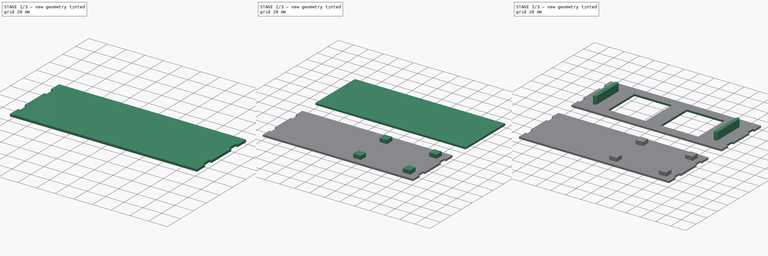
[diagram: build sequence overview — one tinted view per stage of 3, left to right]
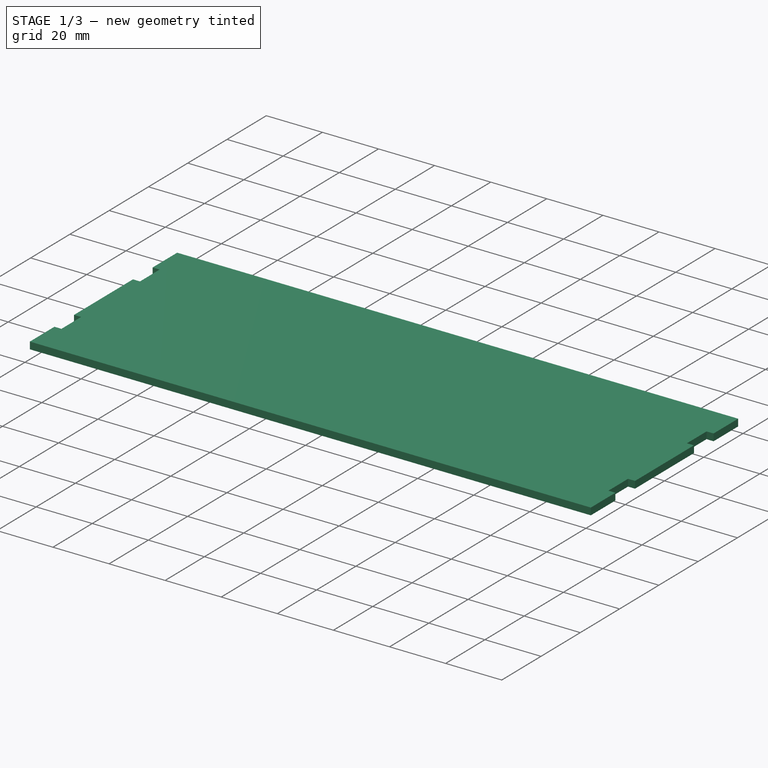
[diagram: stage 1 of 3 — iso view after this stage's code; geometry added in this stage tinted green]
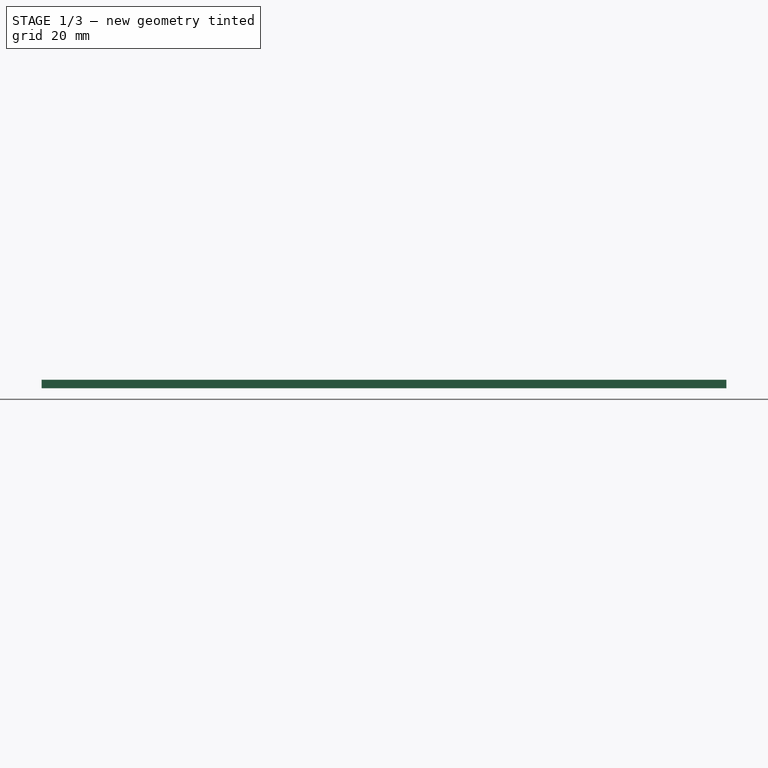
[diagram: stage 1 of 3 — front view after this stage's code; geometry added in this stage tinted green]
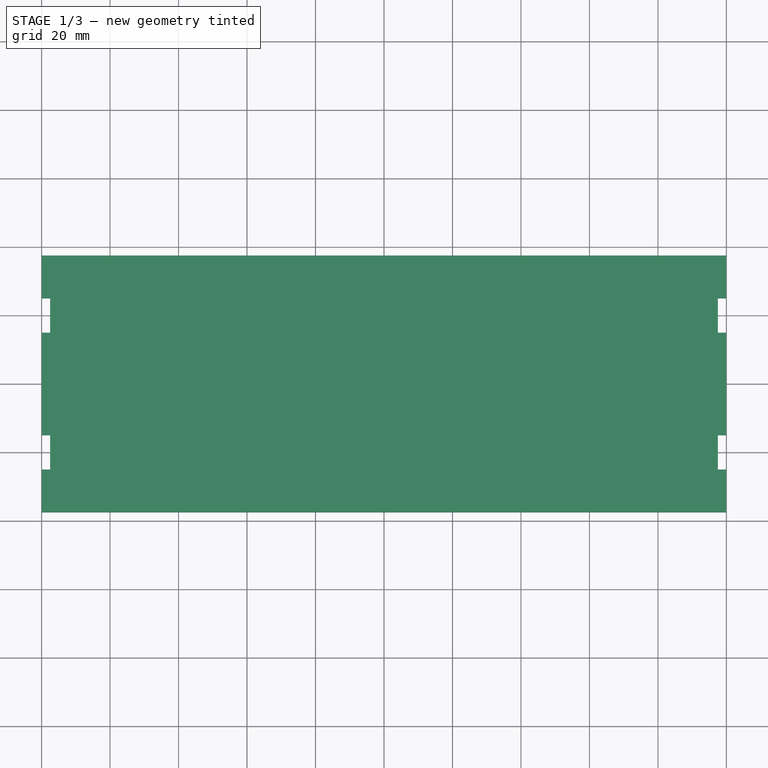
[diagram: stage 1 of 3 — top view after this stage's code; geometry added in this stage tinted green]
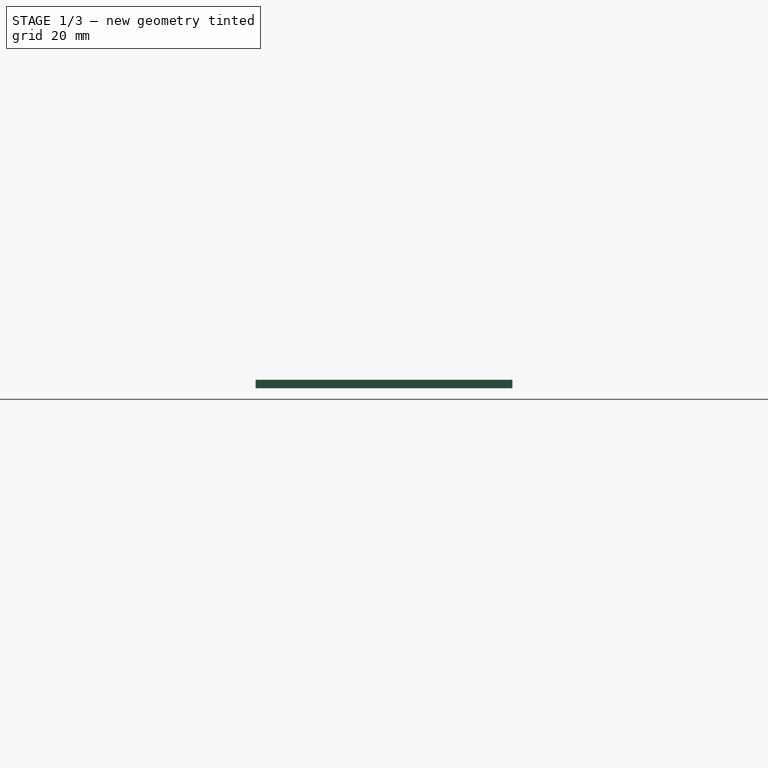
[diagram: stage 1 of 3 — right view after this stage's code; geometry added in this stage tinted green]
FCSTD DOCUMENT  (FreeCAD 1.1R20260325 (Git shallow))
Label: RackLCDFrame
License: All rights reserved
LicenseURL: https://en.wikipedia.org/wiki/All_rights_reserved
objects: Sketcher::SketchObject×6, PartDesign::Pad×4, App::Point×2, PartDesign::Pocket×2, PartDesign::Body×2
note: 32 computed .brp shape members not serialized (recipe doc carries the construction recipe); baked Part::Feature solids carry a one-line shape summary decoded from their .brp

FEATURE [PartDesign::Body] Body  label="Base-Inverted"
  AllowCompound = true
  Group = -> [Sketch,Pad,Sketch001,Pad001,Sketch002,Pocket]
  Origin = -> Origin
  Tip = -> Pocket
FEATURE [App::Point] Origin003
  Role = Origin
FEATURE [Sketcher::SketchObject] Sketch003  label="UBase"
  ArcFitTolerance = 1e-06
  AttachmentSupport = -> [Origin002]
  ExternalTypes = [0]
  FullyConstrained = true
  MakeInternals = false
  MapMode = 5
  _ExternalGeoVersion = 1
  sketch-geometry (5):
    g0: LineSegment StartX=-100 StartY=-62.5 StartZ=0 EndX=-100 EndY=-137.5 EndZ=0
    g1: LineSegment StartX=-100 StartY=-137.5 StartZ=0 EndX=100 EndY=-137.5 EndZ=0
    g2: LineSegment StartX=100 StartY=-137.5 StartZ=0 EndX=100 EndY=-62.5 EndZ=0
    g3: LineSegment StartX=100 StartY=-62.5 StartZ=0 EndX=-100 EndY=-62.5 EndZ=0
    g4: GeomPoint [constr] X=0 Y=-100 Z=0
  constraints (13):
    c: Coincident(g0,g1)
    c: Coincident(g1,g2)
    c: Coincident(g2,g3)
    c: Coincident(g3,g0)
    c: Vertical(g0)
    c: Vertical(g2)
    c: Horizontal(g1)
    c: Horizontal(g3)
    c: Symmetric(g2,g0,g4)
    c: PointOnObject(g4,g-2)
    c: DistanceX(g3,g3) = 200
    c: DistanceY(g2,g2) = 75
    c: Distance(g4,g-1) = 100
FEATURE [PartDesign::Pad] Pad002  label="UBasePad"
  Direction = (0,0,1)
  Length = 2.5
  Length2 = 10
  Profile = -> Sketch003
  ReferenceAxis = -> Sketch003 [N_Axis]
  Refine = true
  SideType = 0
  Suppressed = false
  Type = 0
  Type2 = 0
FEATURE [Sketcher::SketchObject] Sketch004  label="UHole"
  ArcFitTolerance = 1e-06
  AttachmentSupport = -> [Pad002]
  ExternalGeometry = -> [Pad002]
  ExternalTypes = [0,0,0,0]
  FullyConstrained = true
  MakeInternals = false
  MapMode = 5
  Placement = pos=(0,0,2.5) rot=(0,0,1;0rad)
  _ExternalGeoVersion = 1
  sketch-geometry (20):
    g0: LineSegment [constr] StartX=-100 StartY=-125 StartZ=0 EndX=100 EndY=-125 EndZ=0
    g1: LineSegment [constr] StartX=-100 StartY=-75 StartZ=0 EndX=100 EndY=-75 EndZ=0
    g2: LineSegment StartX=-100 StartY=-75 StartZ=0 EndX=-100 EndY=-85 EndZ=0
    g3: LineSegment StartX=-100 StartY=-85 StartZ=0 EndX=-97.5 EndY=-85 EndZ=0
    g4: LineSegment StartX=-97.5 StartY=-85 StartZ=0 EndX=-97.5 EndY=-75 EndZ=0
    g5: LineSegment StartX=-97.5 StartY=-75 StartZ=0 EndX=-100 EndY=-75 EndZ=0
    g6: LineSegment StartX=-100 StartY=-125 StartZ=0 EndX=-97.5 EndY=-125 EndZ=0
    g7: LineSegment StartX=-97.5 StartY=-125 StartZ=0 EndX=-97.5 EndY=-115 EndZ=0
    g8: LineSegment StartX=-97.5 StartY=-115 StartZ=0 EndX=-100 EndY=-115 EndZ=0
    g9: LineSegment StartX=-100 StartY=-115 StartZ=0 EndX=-100 EndY=-125 EndZ=0
    g10: LineSegment StartX=100 StartY=-125 StartZ=0 EndX=100 EndY=-115 EndZ=0
    g11: LineSegment StartX=100 StartY=-115 StartZ=0 EndX=97.5 EndY=-115 EndZ=0
    g12: LineSegment StartX=97.5 StartY=-115 StartZ=0 EndX=97.5 EndY=-125 EndZ=0
    g13: LineSegment StartX=97.5 StartY=-125 StartZ=0 EndX=100 EndY=-125 EndZ=0
    g14: LineSegment StartX=100 StartY=-75 StartZ=0 EndX=97.5 EndY=-75 EndZ=0
    g15: LineSegment StartX=97.5 StartY=-75 StartZ=0 EndX=97.5 EndY=-85 EndZ=0
    g16: LineSegment StartX=97.5 StartY=-85 StartZ=0 EndX=100 EndY=-85 EndZ=0
    g17: LineSegment StartX=100 StartY=-85 StartZ=0 EndX=100 EndY=-75 EndZ=0
    g18: LineSegment [constr] StartX=-97.5 StartY=-62.5 StartZ=0 EndX=-97.5 EndY=-137.5 EndZ=0
    g19: LineSegment [constr] StartX=97.5 StartY=-62.5 StartZ=0 EndX=97.5 EndY=-137.5 EndZ=0
  constraints (60):
    c: PointOnObject(g0,g-3)
    c: PointOnObject(g0,g-5)
    c: Horizontal(g0)
    c: PointOnObject(g1,g-3)
    c: PointOnObject(g1,g-5)
    c: Horizontal(g1)
    c: Distance(g1,g-4) = 12.5
    c: Distance(g-6,g0) = 12.5
    c: Coincident(g2,g3)
    c: Coincident(g3,g4)
    c: Coincident(g4,g5)
    c: Coincident(g5,g2)
    c: Vertical(g2)
    c: Vertical(g4)
    c: Horizontal(g3)
    c: Horizontal(g5)
    c: Coincident(g2,g1)
    c: Coincident(g6,g7)
    c: Coincident(g7,g8)
    c: Coincident(g8,g9)
    c: Coincident(g9,g6)
    c: Horizontal(g6)
    c: Horizontal(g8)
    c: Vertical(g7)
    c: Vertical(g9)
    c: Coincident(g6,g0)
    c: Coincident(g10,g11)
    c: Coincident(g11,g12)
    c: Coincident(g12,g13)
    c: Coincident(g13,g10)
    c: Vertical(g10)
    c: Vertical(g12)
    c: Horizontal(g11)
    c: Horizontal(g13)
    c: Coincident(g10,g0)
    c: Coincident(g14,g15)
    c: Coincident(g15,g16)
    c: Coincident(g16,g17)
    c: Coincident(g17,g14)
    c: Horizontal(g14)
    c: Horizontal(g16)
    c: Vertical(g15)
    c: Vertical(g17)
    c: Coincident(g14,g1)
    c: PointOnObject(g18,g-4)
    c: PointOnObject(g18,g-6)
    c: Vertical(g18)
    c: PointOnObject(g19,g-4)
    c: PointOnObject(g19,g-6)
    c: Vertical(g19)
    c: PointOnObject(g3,g18)
    c: PointOnObject(g7,g18)
    c: PointOnObject(g11,g19)
    c: PointOnObject(g15,g19)
    c: Distance(g17,g17) = 10
    c: Distance(g10,g10) = 10
    c: Distance(g9,g9) = 10
    c: Distance(g2,g2) = 10
    c: Distance(g18,g-3) = 2.5
    c: Distance(g19,g-5) = 2.5
FEATURE [PartDesign::Pocket] Pocket001  label="UHolePocket"
  BaseFeature = -> Pad002
  Direction = (0,0,-1)
  Length = 5
  Length2 = 5
  Profile = -> Sketch004
  ReferenceAxis = -> Sketch004 [N_Axis]
  Refine = true
  SideType = 0
  Suppressed = false
  Type = 2
  Type2 = 0
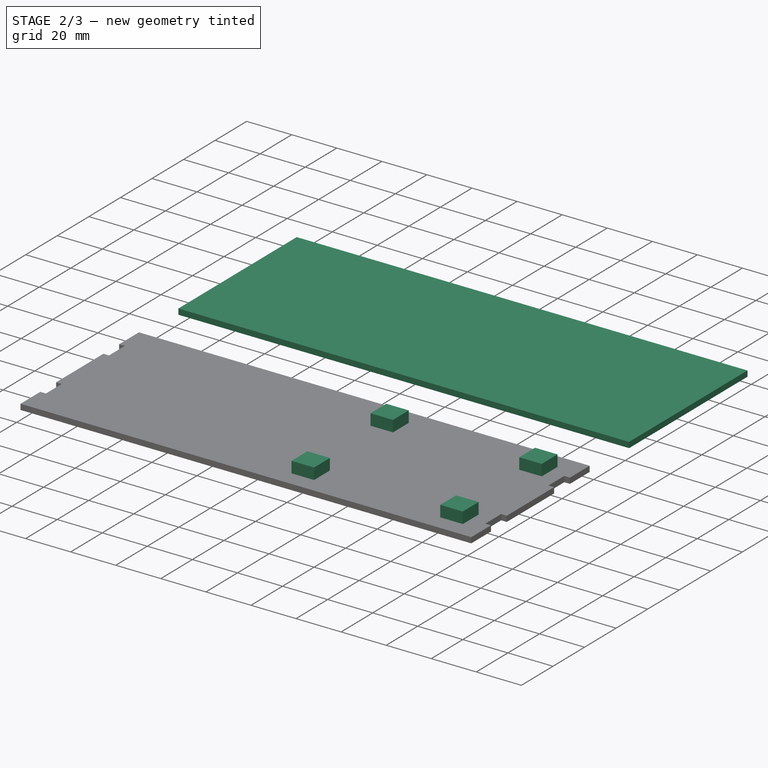
[diagram: stage 2 of 3 — iso view after this stage's code; geometry added in this stage tinted green]
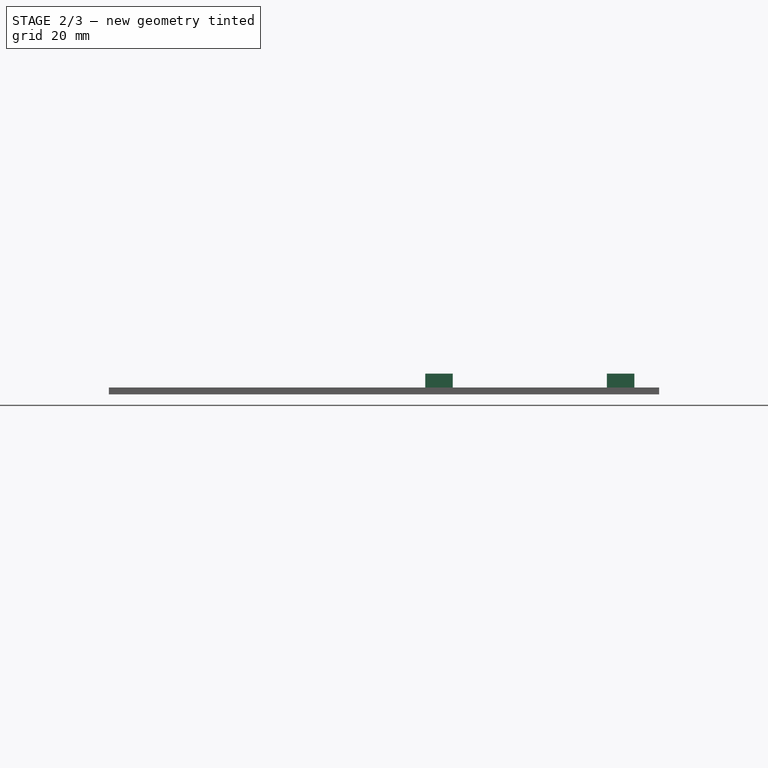
[diagram: stage 2 of 3 — front view after this stage's code; geometry added in this stage tinted green]
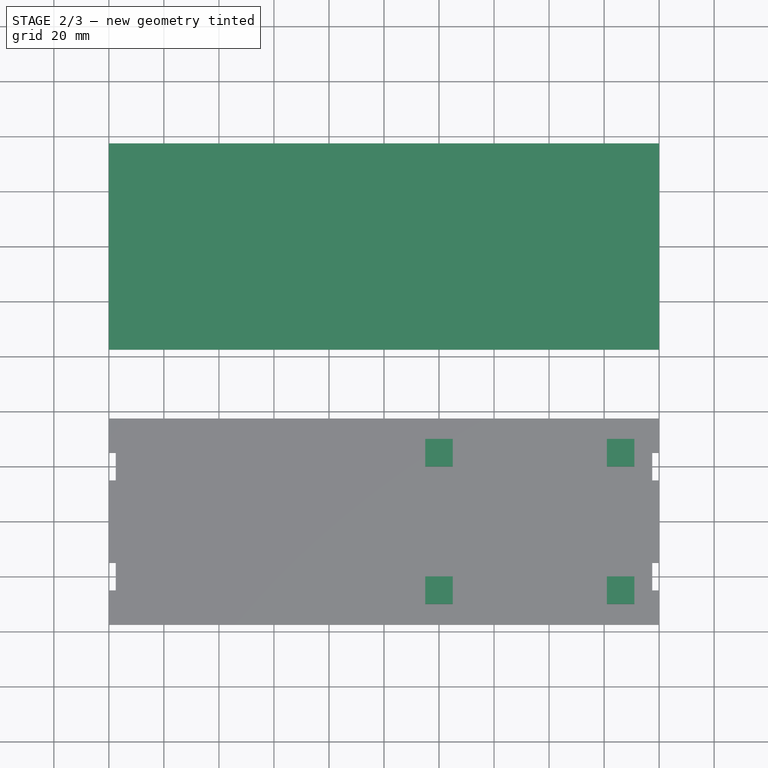
[diagram: stage 2 of 3 — top view after this stage's code; geometry added in this stage tinted green]
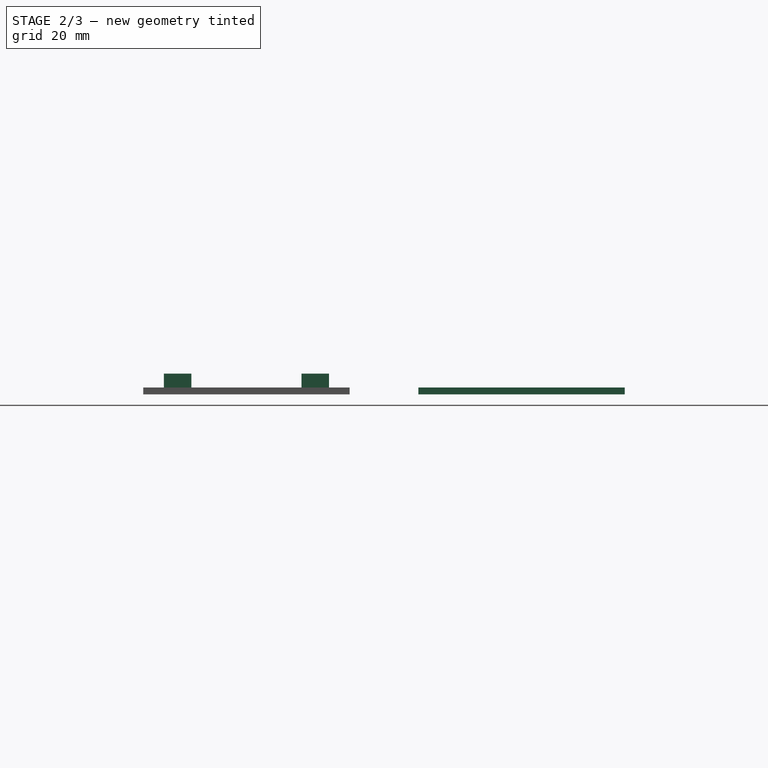
[diagram: stage 2 of 3 — right view after this stage's code; geometry added in this stage tinted green]
FEATURE [App::Point] Origin001
  Role = Origin
FEATURE [Sketcher::SketchObject] Sketch  label="Base"
  ArcFitTolerance = 1e-06
  AttachmentSupport = -> [Origin]
  ExternalTypes = [0]
  FullyConstrained = true
  MakeInternals = false
  MapMode = 5
  _ExternalGeoVersion = 1
  sketch-geometry (5):
    g0: LineSegment StartX=-100 StartY=37.5 StartZ=0 EndX=-100 EndY=-37.5 EndZ=0
    g1: LineSegment StartX=-100 StartY=-37.5 StartZ=0 EndX=100 EndY=-37.5 EndZ=0
    g2: LineSegment StartX=100 StartY=-37.5 StartZ=0 EndX=100 EndY=37.5 EndZ=0
    g3: LineSegment StartX=100 StartY=37.5 StartZ=0 EndX=-100 EndY=37.5 EndZ=0
    g4: GeomPoint [constr] X=0 Y=-1e-16 Z=0
  constraints (12):
    c: Coincident(g0,g1)
    c: Coincident(g1,g2)
    c: Coincident(g2,g3)
    c: Coincident(g3,g0)
    c: Vertical(g0)
    c: Vertical(g2)
    c: Horizontal(g1)
    c: Horizontal(g3)
    c: Symmetric(g2,g0,g4)
    c: Coincident(g4,g-1)
    c: DistanceX(g3,g3) = 200
    c: Distance(g2,g2) = 75
FEATURE [PartDesign::Pad] Pad  label="BasePad"
  Direction = (0,0,1)
  Length = 2.5
  Length2 = 10
  Profile = -> Sketch
  ReferenceAxis = -> Sketch [N_Axis]
  Refine = true
  SideType = 0
  Suppressed = false
  Type = 0
  Type2 = 0
FEATURE [Sketcher::SketchObject] Sketch005  label="UPostsL"
  ArcFitTolerance = 1e-06
  AttachmentSupport = -> [Pocket001]
  ExternalGeometry = -> [Pocket001]
  ExternalTypes = [0,0,0,0,0,0,0,0]
  FullyConstrained = true
  MakeInternals = false
  MapMode = 5
  Placement = pos=(0,0,2.5) rot=(0,0,1;0rad)
  _ExternalGeoVersion = 1
  sketch-geometry (30):
    g0: LineSegment [constr] StartX=20 StartY=-75 StartZ=0 EndX=20 EndY=-125 EndZ=0
    g1: LineSegment [constr] StartX=20 StartY=-125 StartZ=0 EndX=86 EndY=-125 EndZ=0
    g2: LineSegment [constr] StartX=86 StartY=-125 StartZ=0 EndX=86 EndY=-75 EndZ=0
    g3: LineSegment [constr] StartX=86 StartY=-75 StartZ=0 EndX=20 EndY=-75 EndZ=0
    g4: LineSegment [constr] StartX=-100 StartY=-75 StartZ=0 EndX=100 EndY=-75 EndZ=0
    g5: LineSegment [constr] StartX=-100 StartY=-125 StartZ=0 EndX=100 EndY=-125 EndZ=0
    g6: LineSegment StartX=15 StartY=-70 StartZ=0 EndX=15 EndY=-80 EndZ=0
    g7: LineSegment StartX=15 StartY=-80 StartZ=0 EndX=25 EndY=-80 EndZ=0
    g8: LineSegment StartX=25 StartY=-80 StartZ=0 EndX=25 EndY=-70 EndZ=0
    g9: LineSegment StartX=25 StartY=-70 StartZ=0 EndX=15 EndY=-70 EndZ=0
    g10: GeomPoint [constr] X=20 Y=-75 Z=0
    g11: LineSegment StartX=25 StartY=-120 StartZ=0 EndX=15 EndY=-120 EndZ=0
    g12: LineSegment StartX=15 StartY=-120 StartZ=0 EndX=15 EndY=-130 EndZ=0
    g13: LineSegment StartX=15 StartY=-130 StartZ=0 EndX=25 EndY=-130 EndZ=0
    g14: LineSegment StartX=25 StartY=-130 StartZ=0 EndX=25 EndY=-120 EndZ=0
    g15: GeomPoint [constr] X=20 Y=-125 Z=0
    g16: LineSegment StartX=81 StartY=-70 StartZ=0 EndX=81 EndY=-80 EndZ=0
    g17: LineSegment StartX=81 StartY=-80 StartZ=0 EndX=91 EndY=-80 EndZ=0
    g18: LineSegment StartX=91 StartY=-80 StartZ=0 EndX=91 EndY=-70 EndZ=0
    g19: LineSegment StartX=91 StartY=-70 StartZ=0 EndX=81 EndY=-70 EndZ=0
    g20: GeomPoint [constr] X=86 Y=-75 Z=0
    g21: LineSegment StartX=81 StartY=-120 StartZ=0 EndX=81 EndY=-130 EndZ=0
    g22: LineSegment StartX=81 StartY=-130 StartZ=0 EndX=91 EndY=-130 EndZ=0
    g23: LineSegment StartX=91 StartY=-130 StartZ=0 EndX=91 EndY=-120 EndZ=0
    g24: LineSegment StartX=91 StartY=-120 StartZ=0 EndX=81 EndY=-120 EndZ=0
    g25: GeomPoint [constr] X=86 Y=-125 Z=0
    g26: LineSegment [constr] StartX=25 StartY=-80 StartZ=0 EndX=81 EndY=-80 EndZ=0
    g27: LineSegment [constr] StartX=81 StartY=-80 StartZ=0 EndX=81 EndY=-120 EndZ=0
    g28: LineSegment [constr] StartX=81 StartY=-120 StartZ=0 EndX=25 EndY=-120 EndZ=0
    g29: LineSegment [constr] StartX=25 StartY=-120 StartZ=0 EndX=25 EndY=-80 EndZ=0
  constraints (72):
    c: Coincident(g0,g1)
    c: Coincident(g1,g2)
    c: Coincident(g2,g3)
    c: Coincident(g3,g0)
    c: Vertical(g0)
    c: Vertical(g2)
    c: Horizontal(g1)
    c: Horizontal(g3)
    c: DistanceX(g3,g3) = 66
    c: Coincident(g4,g-8)
    c: Coincident(g4,g-4)
    c: Coincident(g5,g-10)
    c: Coincident(g5,g-6)
    c: PointOnObject(g0,g4)
    c: PointOnObject(g0,g5)
    c: Distance(g0,g-2) = 20
    c: Coincident(g6,g7)
    c: Coincident(g7,g8)
    c: Coincident(g8,g9)
    c: Coincident(g9,g6)
    c: Vertical(g6)
    c: Vertical(g8)
    c: Horizontal(g7)
    c: Horizontal(g9)
    c: Symmetric(g8,g6,g10)
    c: Coincident(g10,g0)
    c: Coincident(g11,g12)
    c: Coincident(g12,g13)
    c: Coincident(g13,g14)
    c: Coincident(g14,g11)
    c: Horizontal(g11)
    c: Horizontal(g13)
    c: Vertical(g12)
    c: Vertical(g14)
    c: Symmetric(g13,g11,g15)
    c: Coincident(g15,g0)
    c: Coincident(g16,g17)
    c: Coincident(g17,g18)
    c: Coincident(g18,g19)
    c: Coincident(g19,g16)
    c: Vertical(g16)
    c: Vertical(g18)
    c: Horizontal(g17)
    c: Horizontal(g19)
    c: Symmetric(g18,g16,g20)
    c: Coincident(g20,g2)
    c: Coincident(g21,g22)
    c: Coincident(g22,g23)
    c: Coincident(g23,g24)
    c: Coincident(g24,g21)
    c: Vertical(g21)
    c: Vertical(g23)
    c: Horizontal(g22)
    c: Horizontal(g24)
    c: Symmetric(g23,g21,g25)
    c: Coincident(g25,g1)
    c: Coincident(g7,g26)
    c: Coincident(g26,g16)
    c: Horizontal(g26)
    c: Coincident(g26,g27)
    c: Coincident(g27,g21)
    c: Vertical(g27)
    c: Coincident(g27,g28)
    c: Coincident(g28,g11)
    c: Horizontal(g28)
    c: Coincident(g28,g29)
    c: Coincident(g29,g26)
    c: Vertical(g29)
    c: Distance(g2,g27) = 5
    c: Distance(g3,g26) = 5
    c: Distance(g1,g28) = 5
    c: Distance(g29,g0) = 5
FEATURE [PartDesign::Pad] Pad003  label="UPostsLPad"
  BaseFeature = -> Pocket001
  Direction = (0,0,1)
  Length = 5
  Length2 = 10
  Profile = -> Sketch005
  ReferenceAxis = -> Sketch005 [N_Axis]
  Refine = true
  SideType = 0
  Suppressed = false
  Type = 0
  Type2 = 0
FEATURE [PartDesign::Body] Body001  label="Upper"
  AllowCompound = true
  Group = -> [Sketch003,Pad002,Sketch004,Pocket001,Sketch005,Pad003]
  Origin = -> Origin002
  Tip = -> Pad003
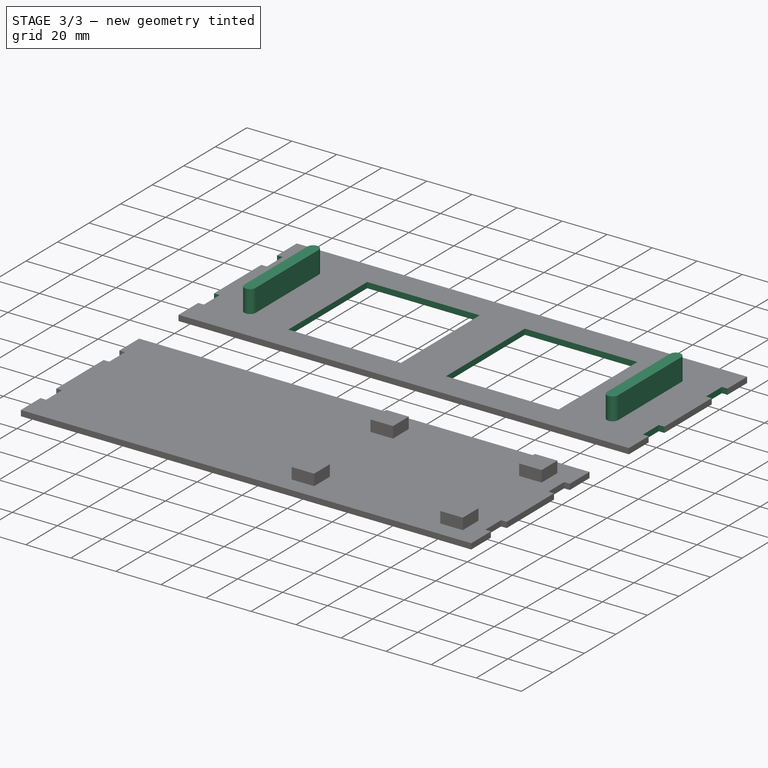
[diagram: stage 3 of 3 — iso view after this stage's code; geometry added in this stage tinted green]
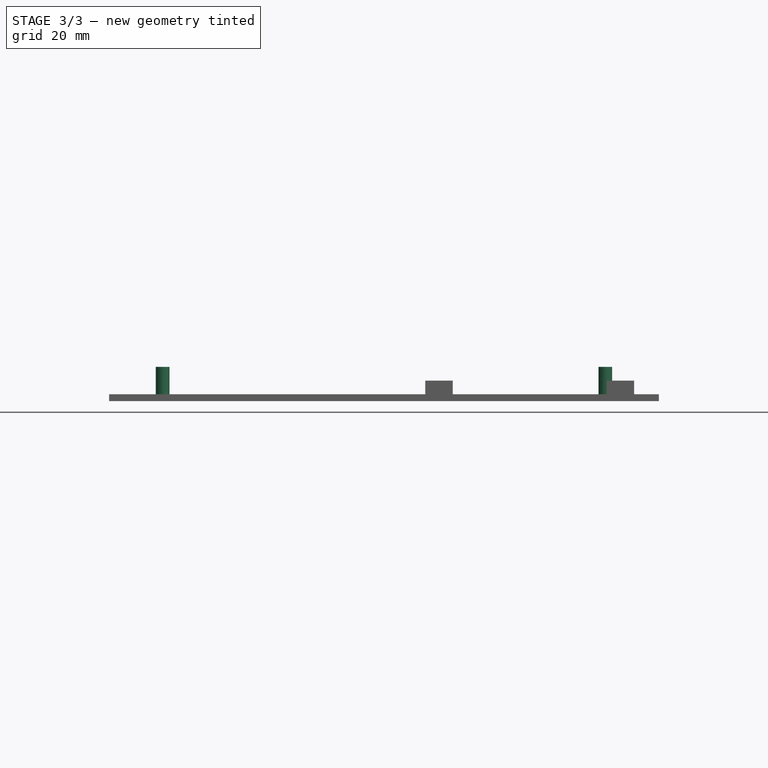
[diagram: stage 3 of 3 — front view after this stage's code; geometry added in this stage tinted green]
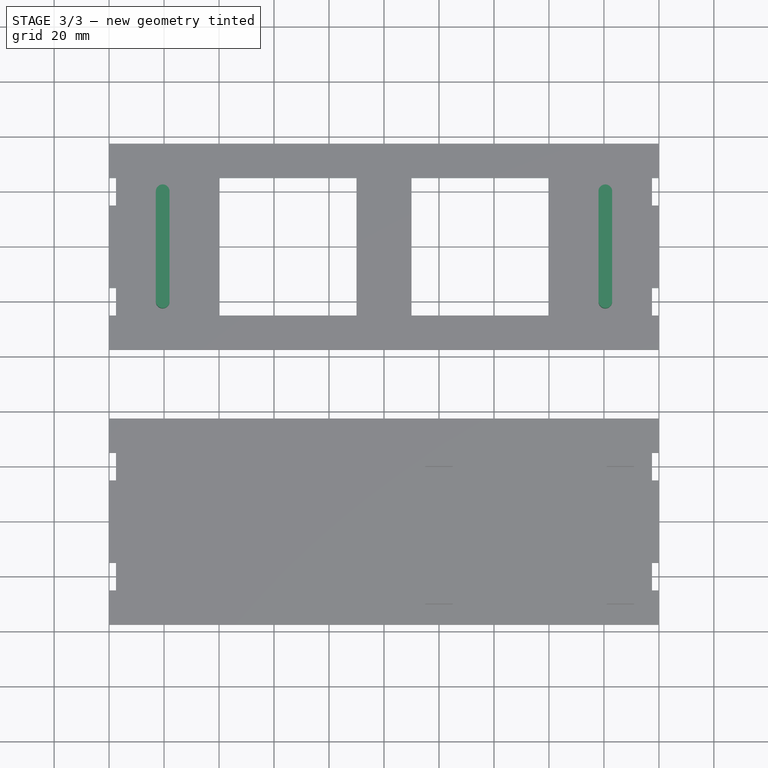
[diagram: stage 3 of 3 — top view after this stage's code; geometry added in this stage tinted green]
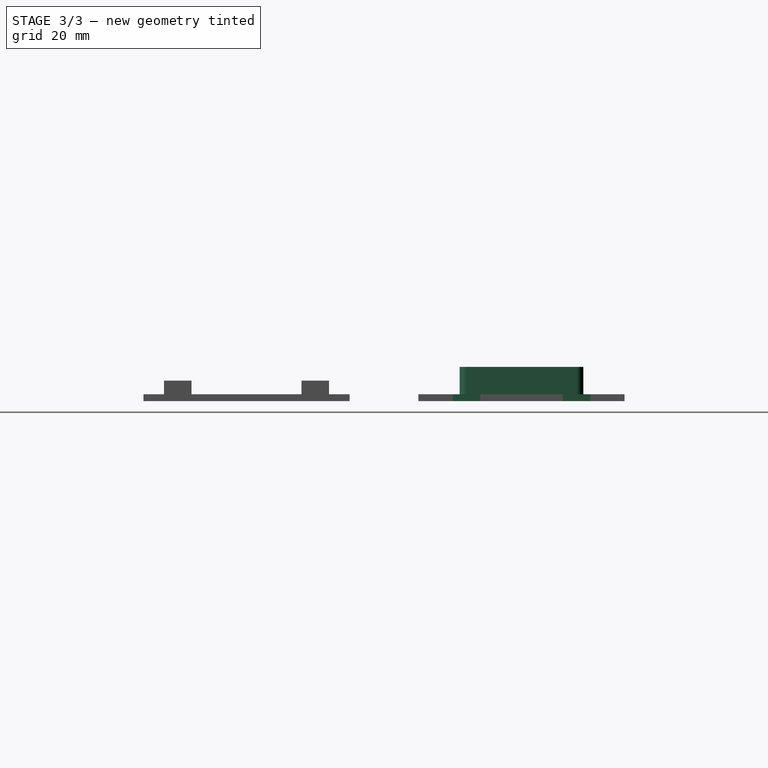
[diagram: stage 3 of 3 — right view after this stage's code; geometry added in this stage tinted green]
FEATURE [Sketcher::SketchObject] Sketch001  label="LocatingPins"
  ArcFitTolerance = 1e-06
  AttachmentSupport = -> [Pad]
  ExternalGeometry = -> [Pad]
  ExternalTypes = [0,0,0,0]
  FullyConstrained = true
  MakeInternals = false
  MapMode = 5
  Placement = pos=(0,0,2.5) rot=(0,0,1;0rad)
  _ExternalGeoVersion = 1
  sketch-geometry (10):
    g0: LineSegment [constr] StartX=-100 StartY=20 StartZ=0 EndX=100 EndY=20 EndZ=0
    g1: LineSegment [constr] StartX=-100 StartY=-20 StartZ=0 EndX=100 EndY=-20 EndZ=0
    g2: ArcOfCircle CenterX=-80.5 CenterY=20 CenterZ=0 NormalX=0 NormalY=0 NormalZ=1 AngleXU=0 Radius=2.5 StartAngle=0 EndAngle=3.14159
    g3: ArcOfCircle CenterX=-80.5 CenterY=-20 CenterZ=0 NormalX=0 NormalY=0 NormalZ=1 AngleXU=0 Radius=2.5 StartAngle=3.14159 EndAngle=6.28319
    g4: LineSegment StartX=-78 StartY=20 StartZ=0 EndX=-78 EndY=-20 EndZ=0
    g5: LineSegment StartX=-83 StartY=20 StartZ=0 EndX=-83 EndY=-20 EndZ=0
    g6: ArcOfCircle CenterX=80.5 CenterY=20 CenterZ=0 NormalX=0 NormalY=0 NormalZ=1 AngleXU=0 Radius=2.5 StartAngle=-9e-16 EndAngle=3.14159
    g7: ArcOfCircle CenterX=80.5 CenterY=-20 CenterZ=0 NormalX=0 NormalY=0 NormalZ=1 AngleXU=0 Radius=2.5 StartAngle=3.14159 EndAngle=6.28319
    g8: LineSegment StartX=83 StartY=20 StartZ=0 EndX=83 EndY=-20 EndZ=0
    g9: LineSegment StartX=78 StartY=20 StartZ=0 EndX=78 EndY=-20 EndZ=0
  constraints (28):
    c: PointOnObject(g0,g-4)
    c: PointOnObject(g0,g-6)
    c: Horizontal(g0)
    c: PointOnObject(g1,g-4)
    c: PointOnObject(g1,g-6)
    c: Horizontal(g1)
    c: Distance(g-3,g0) = 17.5
    c: Distance(g-5,g1) = 17.5
    c: Tangent(g2,g4) = 1.5708
    c: Tangent(g2,g5) = -1.5708
    c: Tangent(g3,g4) = 1.5708
    c: Tangent(g3,g5) = -1.5708
    c: Equal(g2,g3)
    c: PointOnObject(g2,g0)
    c: PointOnObject(g3,g1)
    c: Vertical(g4)
    c: Tangent(g6,g8) = 1.5708
    c: Tangent(g6,g9) = -1.5708
    c: Tangent(g7,g8) = 1.5708
    c: Tangent(g7,g9) = -1.5708
    c: Equal(g6,g7)
    c: PointOnObject(g6,g0)
    c: PointOnObject(g7,g1)
    c: Vertical(g8)
    c: Distance(g3,g-2) = 80.5
    c: Distance(g7,g-2) = 80.5
    c: Radius(g3) = 2.5
    c: Radius(g7) = 2.5
FEATURE [PartDesign::Pad] Pad001  label="LocatingPinsPad"
  BaseFeature = -> Pad
  Direction = (0,0,1)
  Length = 10
  Length2 = 10
  Profile = -> Sketch001
  ReferenceAxis = -> Sketch001 [N_Axis]
  Refine = true
  SideType = 0
  Suppressed = false
  Type = 0
  Type2 = 0
FEATURE [Sketcher::SketchObject] Sketch002  label="Hole"
  ArcFitTolerance = 1e-06
  AttachmentSupport = -> [Pad001]
  ExternalGeometry = -> [Pad001]
  ExternalTypes = [0,0,0,0]
  FullyConstrained = true
  MakeInternals = false
  MapMode = 5
  Placement = pos=(0,0,2.5) rot=(0,0,1;0rad)
  _ExternalGeoVersion = 1
  sketch-geometry (29):
    g0: GeomPoint [constr] X=0 Y=0 Z=0
    g1: LineSegment [constr] StartX=-100 StartY=25 StartZ=0 EndX=100 EndY=25 EndZ=0
    g2: LineSegment [constr] StartX=-100 StartY=-25 StartZ=0 EndX=100 EndY=-25 EndZ=0
    g3: LineSegment StartX=-60 StartY=25 StartZ=0 EndX=-60 EndY=-25 EndZ=0
    g4: LineSegment StartX=-60 StartY=-25 StartZ=0 EndX=-10 EndY=-25 EndZ=0
    g5: LineSegment StartX=-10 StartY=-25 StartZ=0 EndX=-10 EndY=25 EndZ=0
    g6: LineSegment StartX=-10 StartY=25 StartZ=0 EndX=-60 EndY=25 EndZ=0
    g7: LineSegment StartX=60 StartY=25 StartZ=0 EndX=10 EndY=25 EndZ=0
    g8: LineSegment StartX=10 StartY=25 StartZ=0 EndX=10 EndY=-25 EndZ=0
    g9: LineSegment StartX=10 StartY=-25 StartZ=0 EndX=60 EndY=-25 EndZ=0
    g10: LineSegment StartX=60 StartY=-25 StartZ=0 EndX=60 EndY=25 EndZ=0
    g11: LineSegment StartX=-100 StartY=25 StartZ=0 EndX=-100 EndY=15 EndZ=0
    g12: LineSegment StartX=-100 StartY=15 StartZ=0 EndX=-97.5 EndY=15 EndZ=0
    g13: LineSegment StartX=-97.5 StartY=15 StartZ=0 EndX=-97.5 EndY=25 EndZ=0
    g14: LineSegment StartX=-97.5 StartY=25 StartZ=0 EndX=-100 EndY=25 EndZ=0
    g15: LineSegment StartX=-100 StartY=-25 StartZ=0 EndX=-97.5 EndY=-25 EndZ=0
    g16: LineSegment StartX=-97.5 StartY=-25 StartZ=0 EndX=-97.5 EndY=-15 EndZ=0
    g17: LineSegment StartX=-97.5 StartY=-15 StartZ=0 EndX=-100 EndY=-15 EndZ=0
    g18: LineSegment StartX=-100 StartY=-15 StartZ=0 EndX=-100 EndY=-25 EndZ=0
    g19: LineSegment StartX=100 StartY=-25 StartZ=0 EndX=100 EndY=-15 EndZ=0
    g20: LineSegment StartX=100 StartY=-15 StartZ=0 EndX=97.5 EndY=-15 EndZ=0
    g21: LineSegment StartX=97.5 StartY=-15 StartZ=0 EndX=97.5 EndY=-25 EndZ=0
    g22: LineSegment StartX=97.5 StartY=-25 StartZ=0 EndX=100 EndY=-25 EndZ=0
    g23: LineSegment StartX=100 StartY=25 StartZ=0 EndX=97.5 EndY=25 EndZ=0
    g24: LineSegment StartX=97.5 StartY=25 StartZ=0 EndX=97.5 EndY=15 EndZ=0
    g25: LineSegment StartX=97.5 StartY=15 StartZ=0 EndX=100 EndY=15 EndZ=0
    g26: LineSegment StartX=100 StartY=15 StartZ=0 EndX=100 EndY=25 EndZ=0
    g27: LineSegment [constr] StartX=-97.5 StartY=37.5 StartZ=0 EndX=-97.5 EndY=-37.5 EndZ=0
    g28: LineSegment [constr] StartX=97.5 StartY=37.5 StartZ=0 EndX=97.5 EndY=-37.5 EndZ=0
  constraints (85):
    c: Coincident(g0,g-1)
    c: PointOnObject(g1,g-5)
    c: PointOnObject(g1,g-6)
    c: Horizontal(g1)
    c: PointOnObject(g2,g-5)
    c: PointOnObject(g2,g-6)
    c: Horizontal(g2)
    c: Distance(g-3,g1) = 12.5
    c: Distance(g-4,g2) = 12.5
    c: Coincident(g3,g4)
    c: Coincident(g4,g5)
    c: Coincident(g5,g6)
    c: Coincident(g6,g3)
    c: Vertical(g3)
    c: Vertical(g5)
    c: Horizontal(g4)
    c: Horizontal(g6)
    c: PointOnObject(g3,g1)
    c: PointOnObject(g4,g2)
    c: Coincident(g7,g8)
    c: Coincident(g8,g9)
    c: Coincident(g9,g10)
    c: Coincident(g10,g7)
    c: Horizontal(g7)
    c: Horizontal(g9)
    c: Vertical(g8)
    c: Vertical(g10)
    c: PointOnObject(g7,g1)
    c: PointOnObject(g8,g2)
    c: Distance(g-2,g5) = 10
    c: Distance(g8,g-2) = 10
    c: DistanceX(g9,g9) = 50
    c: DistanceX(g4,g4) = 50
    c: Coincident(g11,g12)
    c: Coincident(g12,g13)
    c: Coincident(g13,g14)
    c: Coincident(g14,g11)
    c: Vertical(g11)
    c: Vertical(g13)
    c: Horizontal(g12)
    c: Horizontal(g14)
    c: Coincident(g11,g1)
    c: Coincident(g15,g16)
    c: Coincident(g16,g17)
    c: Coincident(g17,g18)
    c: Coincident(g18,g15)
    c: Horizontal(g15)
    c: Horizontal(g17)
    c: Vertical(g16)
    c: Vertical(g18)
    c: Coincident(g15,g2)
    c: Coincident(g19,g20)
    c: Coincident(g20,g21)
    c: Coincident(g21,g22)
    c: Coincident(g22,g19)
    c: Vertical(g19)
    c: Vertical(g21)
    c: Horizontal(g20)
    c: Horizontal(g22)
    c: Coincident(g19,g2)
    c: Coincident(g23,g24)
    c: Coincident(g24,g25)
    c: Coincident(g25,g26)
    c: Coincident(g26,g23)
    c: Horizontal(g23)
    c: Horizontal(g25)
    c: Vertical(g24)
    c: Vertical(g26)
    c: Coincident(g23,g1)
    c: PointOnObject(g27,g-3)
    c: PointOnObject(g27,g-4)
    c: Vertical(g27)
    c: PointOnObject(g28,g-3)
    c: PointOnObject(g28,g-4)
    c: Vertical(g28)
    c: PointOnObject(g12,g27)
    c: PointOnObject(g16,g27)
    c: PointOnObject(g24,g28)
    c: PointOnObject(g20,g28)
    c: Distance(g27,g-5) = 2.5
    c: Distance(g-6,g28) = 2.5
    c: Distance(g26,g26) = 10
    c: Distance(g19,g19) = 10
    c: Distance(g11,g11) = 10
    c: Distance(g18,g18) = 10
FEATURE [PartDesign::Pocket] Pocket  label="HolePocket"
  BaseFeature = -> Pad001
  Direction = (0,0,-1)
  Length = 5
  Length2 = 5
  Profile = -> Sketch002
  ReferenceAxis = -> Sketch002 [N_Axis]
  Refine = true
  SideType = 0
  Suppressed = false
  Type = 0
  Type2 = 0
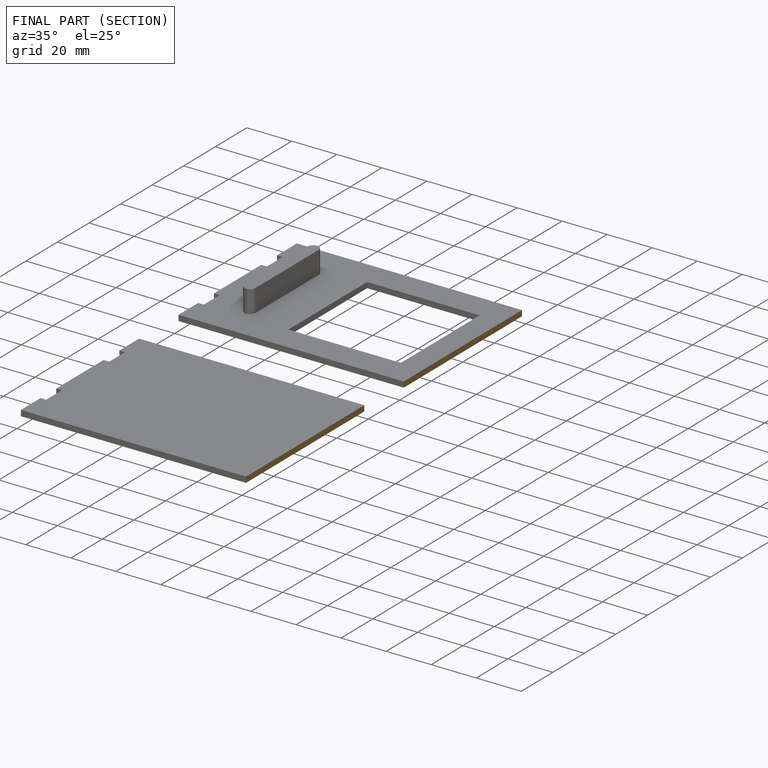
[diagram: finished part — half-section view (interior)]
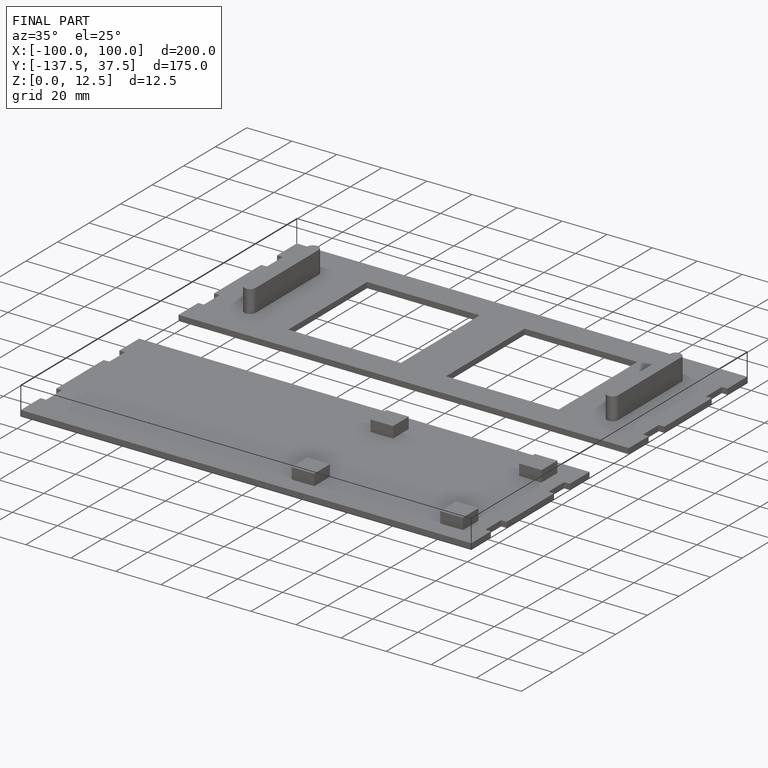
[diagram: finished part — iso view with bounding-box wireframe]
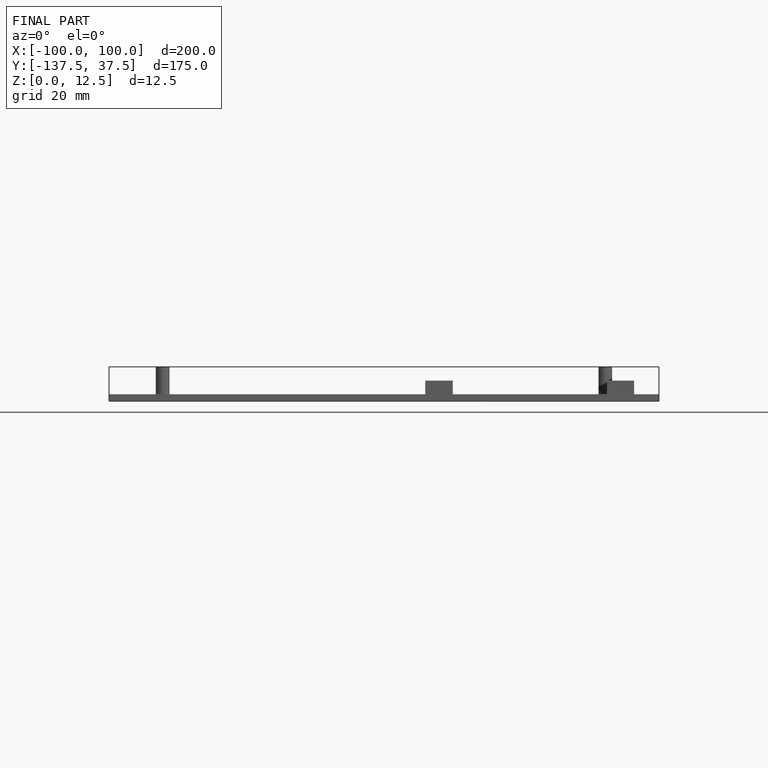
[diagram: finished part — front view with bounding-box wireframe]
